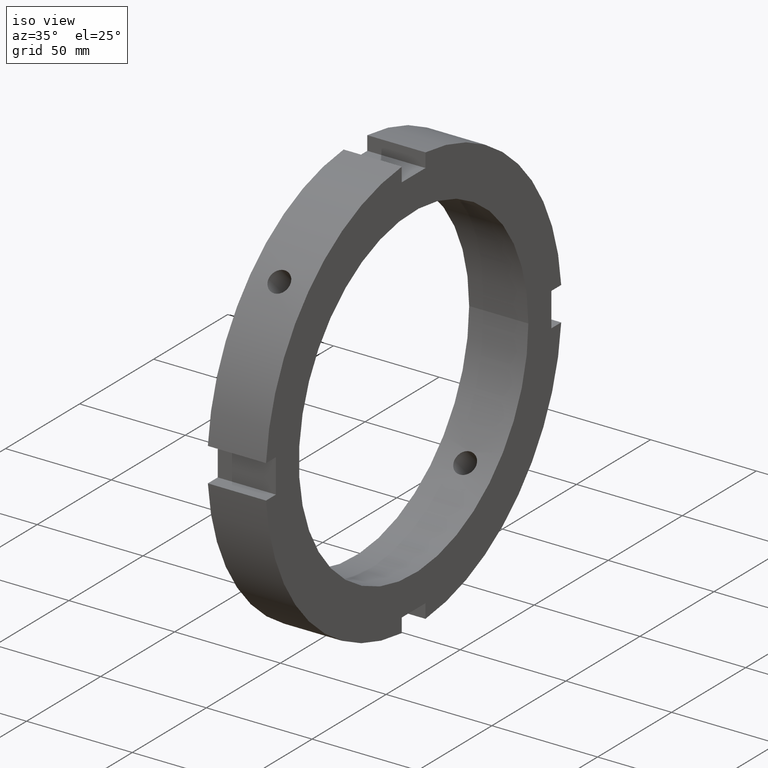
[diagram: clean part render]
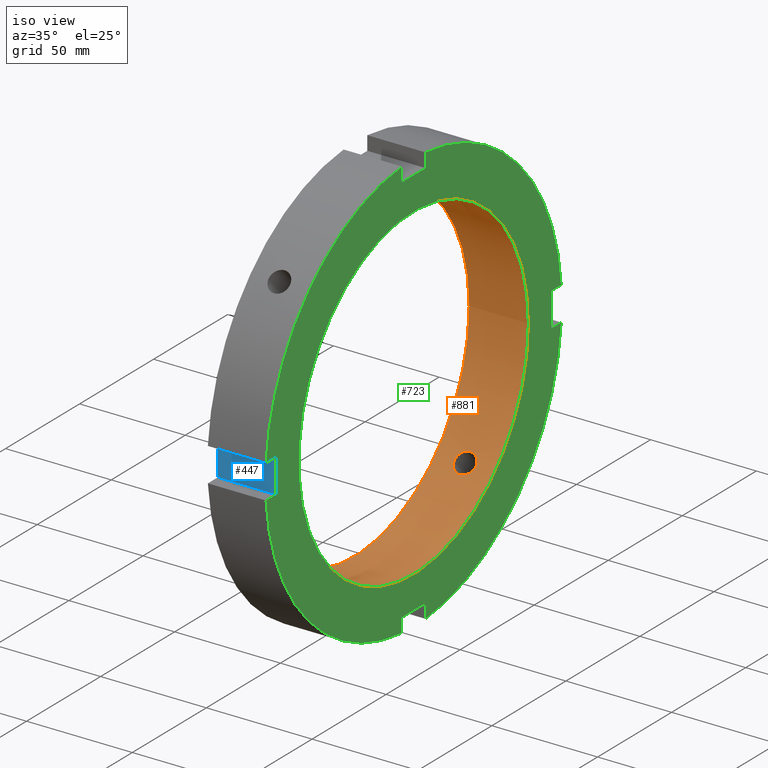
[diagram: same view with three faces highlighted in distinct colors, each labeled with its STEP entity id]
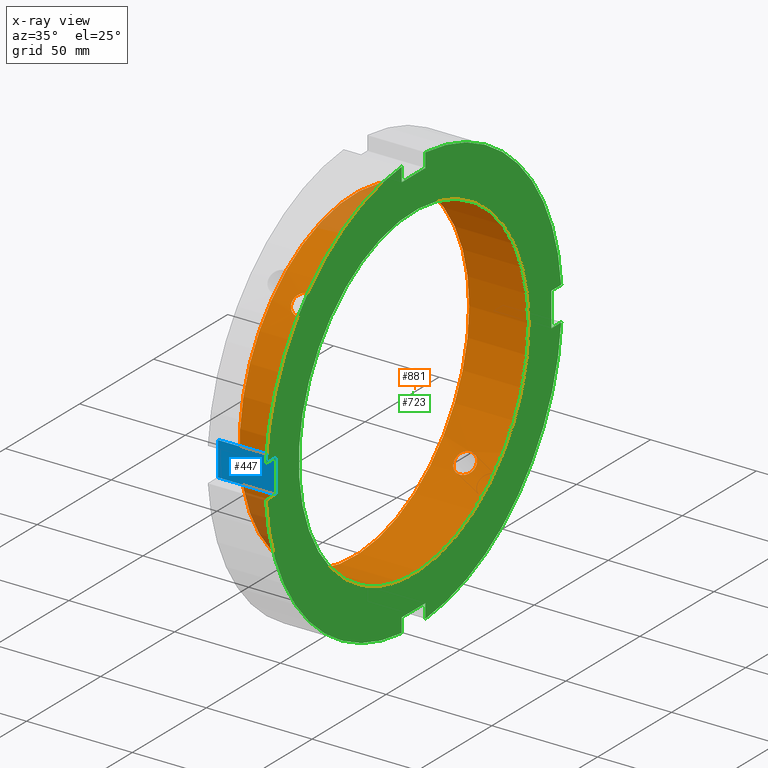
[diagram: x-ray of the same camera — body ghosted, the three highlighted faces saturated]
A machine part, iso view with three faces highlighted in distinct colors.
The next image is the same camera in x-ray (body ghosted, the three faces saturated) — at least one of them is partly hidden behind the body in this view.
Their STEP definitions:

[orange] entity #881 — the highlighted cylindrical surface (bore or boss wall) has radius 77.5 mm, axis along (1, 0, 0).
#114=CARTESIAN_POINT('',(13.999999999999984,-58.257181908604593,51.111160777933343));
#115=VERTEX_POINT('',#114);
#116=CARTESIAN_POINT('',(13.999999999999984,-58.257181908604601,51.111160777933364));
#117=CARTESIAN_POINT('',(14.634659288342045,-58.257181908604601,51.111160777933364));
#118=CARTESIAN_POINT('',(15.311498536589374,-58.173561622553223,51.206966962654334));
#119=CARTESIAN_POINT('',(16.556399978278446,-57.830889824524178,51.593651928783579));
#120=CARTESIAN_POINT('',(17.124477464442638,-57.571527542654444,51.884205948198371));
#121=CARTESIAN_POINT('',(18.021543391817140,-56.966481620826883,52.547802827206631));
#122=CARTESIAN_POINT('',(18.410393147617931,-56.580371484724665,52.965075750134744));
#123=CARTESIAN_POINT('',(18.926126429907374,-55.722066425580195,53.867327758361299));
#124=CARTESIAN_POINT('',(19.052999999999983,-55.249547153929598,54.352003929985273));
#125=CARTESIAN_POINT('',(19.052999999999983,-54.352003929985258,55.249547153929612));
#126=CARTESIAN_POINT('',(18.926126429907374,-53.867327758361299,55.722066425580195));
#127=CARTESIAN_POINT('',(18.410393147617938,-52.965075750134730,56.580371484724672));
#128=CARTESIAN_POINT('',(18.021543391817140,-52.547802827206631,56.966481620826897));
#129=CARTESIAN_POINT('',(17.124477464442638,-51.884205948198371,57.571527542654451));
#130=CARTESIAN_POINT('',(16.556399978278449,-51.593651928783558,57.830889824524199));
#131=CARTESIAN_POINT('',(15.311498536589383,-51.206966962654320,58.173561622553251));
#132=CARTESIAN_POINT('',(14.634659288342045,-51.111160777933350,58.257181908604579));
#133=CARTESIAN_POINT('',(13.365340711657922,-51.111160777933350,58.257181908604593));
#134=CARTESIAN_POINT('',(12.688501463410580,-51.206966962654327,58.173561622553251));
#135=CARTESIAN_POINT('',(11.443600021721510,-51.593651928783572,57.830889824524192));
#136=CARTESIAN_POINT('',(10.875522535557330,-51.884205948198371,57.571527542654465));
#137=CARTESIAN_POINT('',(9.978456608182826,-52.547802827206631,56.966481620826897));
#138=CARTESIAN_POINT('',(9.589606852382026,-52.965075750134730,56.580371484724672));
#139=CARTESIAN_POINT('',(9.073873570092589,-53.867327758361299,55.722066425580195));
#140=CARTESIAN_POINT('',(8.946999999999983,-54.352003929985258,55.249547153929612));
#141=CARTESIAN_POINT('',(8.946999999999983,-55.249547153929598,54.352003929985273));
#142=CARTESIAN_POINT('',(9.073873570092596,-55.722066425580195,53.867327758361306));
#143=CARTESIAN_POINT('',(9.589606852382035,-56.580371484724665,52.965075750134751));
#144=CARTESIAN_POINT('',(9.978456608182825,-56.966481620826883,52.547802827206631));
#145=CARTESIAN_POINT('',(10.875522535557330,-57.571527542654444,51.884205948198371));
#146=CARTESIAN_POINT('',(11.443600021721528,-57.830889824524178,51.593651928783586));
#147=CARTESIAN_POINT('',(12.688501463410597,-58.173561622553223,51.206966962654349));
#148=CARTESIAN_POINT('',(13.365340711657925,-58.257181908604601,51.111160777933364));
#149=CARTESIAN_POINT('',(13.999999999999986,-58.257181908604601,51.111160777933364));
#150=B_SPLINE_CURVE_WITH_KNOTS('',3,(#116,#117,#118,#119,#120,#121,#122,#123,#124,#125,#126,#127,#128,#129,#130,#131,#132,#133,#134,#135,#136,#137,#138,#139,#140,#141,#142,#143,#144,#145,#146,#147,#148,#149),.UNSPECIFIED.,.T.,.U.,(4,2,2,2,2,2,2,2,2,2,2,2,2,2,2,2,4),(0.0,0.190397786502618,0.380795573005236,0.571193243022960,0.761590913040683,0.951988583058407,1.142386253076130,1.332784039578749,1.523181826081367,1.713579612583985,1.903977399086603,2.094375069104327,2.284772739122050,2.475170409139774,2.665568079157497,2.855965865660116,3.046363652162734),.UNSPECIFIED.);
#151=EDGE_CURVE('',#115,#115,#150,.T.);
#202=CARTESIAN_POINT('',(13.999999999999984,51.111160777933335,-58.257181908604601));
#203=VERTEX_POINT('',#202);
#204=CARTESIAN_POINT('',(13.999999999999984,51.111160777933343,-58.257181908604608));
#205=CARTESIAN_POINT('',(13.365340711657922,51.111160777933343,-58.257181908604608));
#206=CARTESIAN_POINT('',(12.688501463410589,51.206966962654320,-58.173561622553237));
#207=CARTESIAN_POINT('',(11.443600021721519,51.593651928783558,-57.830889824524192));
#208=CARTESIAN_POINT('',(10.875522535557330,51.884205948198371,-57.571527542654465));
#209=CARTESIAN_POINT('',(9.978456608182826,52.547802827206631,-56.966481620826897));
#210=CARTESIAN_POINT('',(9.589606852382026,52.965075750134730,-56.580371484724672));
#211=CARTESIAN_POINT('',(9.073873570092589,53.867327758361299,-55.722066425580195));
#212=CARTESIAN_POINT('',(8.946999999999983,54.352003929985258,-55.249547153929612));
#213=CARTESIAN_POINT('',(8.946999999999983,55.249547153929598,-54.352003929985273));
#214=CARTESIAN_POINT('',(9.073873570092596,55.722066425580195,-53.867327758361306));
#215=CARTESIAN_POINT('',(9.589606852382035,56.580371484724665,-52.965075750134751));
#216=CARTESIAN_POINT('',(9.978456608182825,56.966481620826883,-52.547802827206631));
#217=CARTESIAN_POINT('',(10.875522535557330,57.571527542654444,-51.884205948198371));
#218=CARTESIAN_POINT('',(11.443600021721522,57.830889824524178,-51.593651928783579));
#219=CARTESIAN_POINT('',(12.688501463410592,58.173561622553223,-51.206966962654334));
#220=CARTESIAN_POINT('',(13.365340711657922,58.257181908604579,-51.111160777933364));
#221=CARTESIAN_POINT('',(14.634659288342045,58.257181908604579,-51.111160777933364));
#222=CARTESIAN_POINT('',(15.311498536589376,58.173561622553223,-51.206966962654342));
#223=CARTESIAN_POINT('',(16.556399978278446,57.830889824524178,-51.593651928783586));
#224=CARTESIAN_POINT('',(17.124477464442634,57.571527542654444,-51.884205948198371));
#225=CARTESIAN_POINT('',(18.021543391817140,56.966481620826883,-52.547802827206631));
#226=CARTESIAN_POINT('',(18.410393147617942,56.580371484724658,-52.965075750134758));
#227=CARTESIAN_POINT('',(18.926126429907374,55.722066425580188,-53.867327758361313));
#228=CARTESIAN_POINT('',(19.052999999999983,55.249547153929598,-54.352003929985273));
#229=CARTESIAN_POINT('',(19.052999999999983,54.352003929985258,-55.249547153929612));
#230=CARTESIAN_POINT('',(18.926126429907377,53.867327758361299,-55.722066425580195));
#231=CARTESIAN_POINT('',(18.410393147617942,52.965075750134730,-56.580371484724672));
#232=CARTESIAN_POINT('',(18.021543391817143,52.547802827206631,-56.966481620826897));
#233=CARTESIAN_POINT('',(17.124477464442641,51.884205948198371,-57.571527542654465));
#234=CARTESIAN_POINT('',(16.556399978278453,51.593651928783558,-57.830889824524185));
#235=CARTESIAN_POINT('',(15.311498536589383,51.206966962654320,-58.173561622553237));
#236=CARTESIAN_POINT('',(14.634659288342045,51.111160777933343,-58.257181908604608));
#237=CARTESIAN_POINT('',(13.999999999999984,51.111160777933343,-58.257181908604608));
#238=B_SPLINE_CURVE_WITH_KNOTS('',3,(#204,#205,#206,#207,#208,#209,#210,#211,#212,#213,#214,#215,#216,#217,#218,#219,#220,#221,#222,#223,#224,#225,#226,#227,#228,#229,#230,#231,#232,#233,#234,#235,#236,#237),.UNSPECIFIED.,.T.,.U.,(4,2,2,2,2,2,2,2,2,2,2,2,2,2,2,2,4),(0.0,0.190397786502618,0.380795573005236,0.571193243022960,0.761590913040683,0.951988583058407,1.142386253076130,1.332784039578749,1.523181826081367,1.713579612583985,1.903977399086603,2.094375069104327,2.284772739122051,2.475170409139774,2.665568079157497,2.855965865660116,3.046363652162734),.UNSPECIFIED.);
#239=EDGE_CURVE('',#203,#203,#238,.T.);
#712=CARTESIAN_POINT('',(27.999999999999986,77.500000000000000,0.0));
#713=VERTEX_POINT('',#712);
#714=CARTESIAN_POINT('',(27.999999999999986,0.0,0.0));
#715=DIRECTION('',(1.0,0.0,0.0));
#716=DIRECTION('',(0.0,1.0,0.0));
#717=AXIS2_PLACEMENT_3D('',#714,#715,#716);
#718=CIRCLE('',#717,77.500000000000000);
#719=EDGE_CURVE('',#713,#713,#718,.T.);
#805=CARTESIAN_POINT('',(-2.283313E-014,77.500000000000000,0.0));
#806=VERTEX_POINT('',#805);
#807=CARTESIAN_POINT('',(-2.283330E-014,0.0,0.0));
#808=DIRECTION('',(1.0,0.0,0.0));
#809=DIRECTION('',(0.0,1.0,0.0));
#810=AXIS2_PLACEMENT_3D('',#807,#808,#809);
#811=CIRCLE('',#810,77.500000000000000);
#812=EDGE_CURVE('',#806,#806,#811,.T.);
#864=CARTESIAN_POINT('',(13.999999999999982,0.0,0.0));
#865=DIRECTION('',(1.0,0.0,0.0));
#866=DIRECTION('',(0.0,1.0,0.0));
#867=AXIS2_PLACEMENT_3D('',#864,#865,#866);
#868=CYLINDRICAL_SURFACE('',#867,77.500000000000000);
#869=ORIENTED_EDGE('',*,*,#812,.F.);
#870=EDGE_LOOP('',(#869));
#871=FACE_OUTER_BOUND('',#870,.T.);
#872=ORIENTED_EDGE('',*,*,#151,.T.);
#873=EDGE_LOOP('',(#872));
#874=FACE_BOUND('',#873,.T.);
#875=ORIENTED_EDGE('',*,*,#239,.T.);
#876=EDGE_LOOP('',(#875));
#877=FACE_BOUND('',#876,.T.);
#878=ORIENTED_EDGE('',*,*,#719,.T.);
#879=EDGE_LOOP('',(#878));
#880=FACE_BOUND('',#879,.T.);
#881=ADVANCED_FACE('',(#871,#874,#877,#880),#868,.F.);

[blue] entity #447 — the highlighted planar face has unit normal (0, 1, 0).
#351=CARTESIAN_POINT('',(0.499999999999972,-93.0,8.000000000000005));
#352=VERTEX_POINT('',#351);
#361=CARTESIAN_POINT('',(27.999999999999979,-93.0,8.000000000000005));
#362=VERTEX_POINT('',#361);
#363=CARTESIAN_POINT('',(27.999999999999979,-93.0,8.000000000000005));
#364=DIRECTION('',(-1.0,0.0,0.0));
#365=VECTOR('',#364,27.500000000000007);
#366=LINE('',#363,#365);
#367=EDGE_CURVE('',#362,#352,#366,.T.);
#393=CARTESIAN_POINT('',(0.499999999999972,-93.0,-7.999999999999984));
#394=VERTEX_POINT('',#393);
#409=CARTESIAN_POINT('',(27.999999999999979,-93.0,-7.999999999999984));
#410=VERTEX_POINT('',#409);
#417=CARTESIAN_POINT('',(27.999999999999979,-93.0,-7.999999999999984));
#418=DIRECTION('',(-1.0,0.0,0.0));
#419=VECTOR('',#418,27.500000000000007);
#420=LINE('',#417,#419);
#421=EDGE_CURVE('',#410,#394,#420,.T.);
#426=CARTESIAN_POINT('',(27.999999999999979,-93.0,-7.999999999999984));
#427=DIRECTION('',(0.0,1.0,0.0));
#428=DIRECTION('',(0.0,0.0,1.0));
#429=AXIS2_PLACEMENT_3D('',#426,#427,#428);
#430=PLANE('',#429);
#431=CARTESIAN_POINT('',(0.499999999999974,-93.0,-7.999999999999984));
#432=DIRECTION('',(0.0,0.0,1.0));
#433=VECTOR('',#432,15.999999999999989);
#434=LINE('',#431,#433);
#435=EDGE_CURVE('',#394,#352,#434,.T.);
#436=ORIENTED_EDGE('',*,*,#435,.F.);
#437=ORIENTED_EDGE('',*,*,#421,.F.);
#438=CARTESIAN_POINT('',(27.999999999999979,-93.0,8.000000000000005));
#439=DIRECTION('',(0.0,0.0,-1.0));
#440=VECTOR('',#439,15.999999999999989);
#441=LINE('',#438,#440);
#442=EDGE_CURVE('',#362,#410,#441,.T.);
#443=ORIENTED_EDGE('',*,*,#442,.F.);
#444=ORIENTED_EDGE('',*,*,#367,.T.);
#445=EDGE_LOOP('',(#436,#437,#443,#444));
#446=FACE_OUTER_BOUND('',#445,.T.);
#447=ADVANCED_FACE('',(#446),#430,.F.);

[green] entity #723 — the highlighted planar face has unit normal (1, 0, 0).
#259=CARTESIAN_POINT('',(27.999999999999979,-8.000000000000011,-93.0));
#260=VERTEX_POINT('',#259);
#267=CARTESIAN_POINT('',(27.999999999999979,-8.000000000000012,-99.679486355016905));
#268=VERTEX_POINT('',#267);
#269=CARTESIAN_POINT('',(27.999999999999979,-8.000000000000007,-99.679486355016905));
#270=DIRECTION('',(0.0,0.0,1.0));
#271=VECTOR('',#270,6.679486355016906);
#272=LINE('',#269,#271);
#273=EDGE_CURVE('',#268,#260,#272,.T.);
#299=CARTESIAN_POINT('',(27.999999999999979,7.999999999999977,-99.679486355016905));
#300=VERTEX_POINT('',#299);
#307=CARTESIAN_POINT('',(27.999999999999979,7.999999999999979,-93.0));
#308=VERTEX_POINT('',#307);
#309=CARTESIAN_POINT('',(27.999999999999979,7.999999999999973,-93.0));
#310=DIRECTION('',(0.0,0.0,-1.0));
#311=VECTOR('',#310,6.679486355016906);
#312=LINE('',#309,#311);
#313=EDGE_CURVE('',#308,#300,#312,.T.);
#336=CARTESIAN_POINT('',(27.999999999999979,-8.000000000000014,-92.999999999999986));
#337=DIRECTION('',(0.0,1.0,0.0));
#338=VECTOR('',#337,15.999999999999993);
#339=LINE('',#336,#338);
#340=EDGE_CURVE('',#260,#308,#339,.T.);
#361=CARTESIAN_POINT('',(27.999999999999979,-93.0,8.000000000000005));
#362=VERTEX_POINT('',#361);
#369=CARTESIAN_POINT('',(27.999999999999979,-99.679486355016905,8.000000000000005));
#370=VERTEX_POINT('',#369);
#371=CARTESIAN_POINT('',(27.999999999999979,-99.679486355016905,8.000000000000007));
#372=DIRECTION('',(0.0,1.0,0.0));
#373=VECTOR('',#372,6.679486355016906);
#374=LINE('',#371,#373);
#375=EDGE_CURVE('',#370,#362,#374,.T.);
#401=CARTESIAN_POINT('',(27.999999999999979,-99.679486355016905,-7.999999999999984));
#402=VERTEX_POINT('',#401);
#409=CARTESIAN_POINT('',(27.999999999999979,-93.0,-7.999999999999984));
#410=VERTEX_POINT('',#409);
#411=CARTESIAN_POINT('',(27.999999999999979,-93.0,-7.999999999999983));
#412=DIRECTION('',(0.0,-1.0,0.0));
#413=VECTOR('',#412,6.679486355016906);
#414=LINE('',#411,#413);
#415=EDGE_CURVE('',#410,#402,#414,.T.);
#438=CARTESIAN_POINT('',(27.999999999999979,-93.0,8.000000000000005));
#439=DIRECTION('',(0.0,0.0,-1.0));
#440=VECTOR('',#439,15.999999999999989);
#441=LINE('',#438,#440);
#442=EDGE_CURVE('',#362,#410,#441,.T.);
#463=CARTESIAN_POINT('',(27.999999999999979,8.0,93.0));
#464=VERTEX_POINT('',#463);
#471=CARTESIAN_POINT('',(27.999999999999979,8.0,99.679486355016905));
#472=VERTEX_POINT('',#471);
#473=CARTESIAN_POINT('',(27.999999999999979,8.000000000000011,99.679486355016905));
#474=DIRECTION('',(0.0,0.0,-1.0));
#475=VECTOR('',#474,6.679486355016906);
#476=LINE('',#473,#475);
#477=EDGE_CURVE('',#472,#464,#476,.T.);
#503=CARTESIAN_POINT('',(27.999999999999979,-7.999999999999989,99.679486355016905));
#504=VERTEX_POINT('',#503);
#511=CARTESIAN_POINT('',(27.999999999999979,-7.999999999999989,93.0));
#512=VERTEX_POINT('',#511);
#513=CARTESIAN_POINT('',(27.999999999999979,-7.999999999999987,93.0));
#514=DIRECTION('',(0.0,0.0,1.0));
#515=VECTOR('',#514,6.679486355016906);
#516=LINE('',#513,#515);
#517=EDGE_CURVE('',#512,#504,#516,.T.);
#540=CARTESIAN_POINT('',(27.999999999999979,8.0,93.0));
#541=DIRECTION('',(0.0,-1.0,0.0));
#542=VECTOR('',#541,15.999999999999986);
#543=LINE('',#540,#542);
#544=EDGE_CURVE('',#464,#512,#543,.T.);
#556=CARTESIAN_POINT('',(27.999999999999979,99.679486355016905,7.999999999999995));
#557=VERTEX_POINT('',#556);
#558=CARTESIAN_POINT('',(27.999999999999979,0.0,0.0));
#559=DIRECTION('',(1.0,0.0,0.0));
#560=DIRECTION('',(0.0,1.0,0.0));
#561=AXIS2_PLACEMENT_3D('',#558,#559,#560);
#562=CIRCLE('',#561,100.0);
#563=EDGE_CURVE('',#557,#472,#562,.T.);
#589=CARTESIAN_POINT('',(27.999999999999979,0.0,0.0));
#590=DIRECTION('',(1.0,0.0,0.0));
#591=DIRECTION('',(0.0,1.0,0.0));
#592=AXIS2_PLACEMENT_3D('',#589,#590,#591);
#593=CIRCLE('',#592,100.0);
#594=EDGE_CURVE('',#504,#370,#593,.T.);
#625=CARTESIAN_POINT('',(27.999999999999979,99.679486355016905,-7.999999999999995));
#626=VERTEX_POINT('',#625);
#633=CARTESIAN_POINT('',(27.999999999999979,0.0,0.0));
#634=DIRECTION('',(1.0,0.0,0.0));
#635=DIRECTION('',(0.0,1.0,0.0));
#636=AXIS2_PLACEMENT_3D('',#633,#634,#635);
#637=CIRCLE('',#636,100.0);
#638=EDGE_CURVE('',#300,#626,#637,.T.);
#652=CARTESIAN_POINT('',(27.999999999999979,0.0,0.0));
#653=DIRECTION('',(1.0,0.0,0.0));
#654=DIRECTION('',(0.0,1.0,0.0));
#655=AXIS2_PLACEMENT_3D('',#652,#653,#654);
#656=CIRCLE('',#655,100.0);
#657=EDGE_CURVE('',#402,#268,#656,.T.);
#670=CARTESIAN_POINT('',(27.999999999999979,88.750000000000000,0.0));
#671=DIRECTION('',(1.0,0.0,0.0));
#672=DIRECTION('',(0.0,0.0,-1.0));
#673=AXIS2_PLACEMENT_3D('',#670,#671,#672);
#674=PLANE('',#673);
#675=ORIENTED_EDGE('',*,*,#273,.T.);
#676=ORIENTED_EDGE('',*,*,#340,.T.);
#677=ORIENTED_EDGE('',*,*,#313,.T.);
#678=ORIENTED_EDGE('',*,*,#638,.T.);
#679=CARTESIAN_POINT('',(27.999999999999979,93.0,-7.999999999999995));
#680=VERTEX_POINT('',#679);
#681=CARTESIAN_POINT('',(27.999999999999979,99.679486355016905,-7.999999999999995));
#682=DIRECTION('',(0.0,-1.0,0.0));
#683=VECTOR('',#682,6.679486355016906);
#684=LINE('',#681,#683);
#685=EDGE_CURVE('',#626,#680,#684,.T.);
#686=ORIENTED_EDGE('',*,*,#685,.T.);
#687=CARTESIAN_POINT('',(27.999999999999979,93.0,7.999999999999995));
#688=VERTEX_POINT('',#687);
#689=CARTESIAN_POINT('',(27.999999999999979,93.0,-7.999999999999996));
#690=DIRECTION('',(0.0,0.0,1.0));
#691=VECTOR('',#690,15.999999999999989);
#692=LINE('',#689,#691);
#693=EDGE_CURVE('',#680,#688,#692,.T.);
#694=ORIENTED_EDGE('',*,*,#693,.T.);
#695=CARTESIAN_POINT('',(27.999999999999979,93.0,7.999999999999995));
#696=DIRECTION('',(0.0,1.0,0.0));
#697=VECTOR('',#696,6.679486355016906);
#698=LINE('',#695,#697);
#699=EDGE_CURVE('',#688,#557,#698,.T.);
#700=ORIENTED_EDGE('',*,*,#699,.T.);
#701=ORIENTED_EDGE('',*,*,#563,.T.);
#702=ORIENTED_EDGE('',*,*,#477,.T.);
#703=ORIENTED_EDGE('',*,*,#544,.T.);
#704=ORIENTED_EDGE('',*,*,#517,.T.);
#705=ORIENTED_EDGE('',*,*,#594,.T.);
#706=ORIENTED_EDGE('',*,*,#375,.T.);
#707=ORIENTED_EDGE('',*,*,#442,.T.);
#708=ORIENTED_EDGE('',*,*,#415,.T.);
#709=ORIENTED_EDGE('',*,*,#657,.T.);
#710=EDGE_LOOP('',(#675,#676,#677,#678,#686,#694,#700,#701,#702,#703,#704,#705,#706,#707,#708,#709));
#711=FACE_OUTER_BOUND('',#710,.T.);
#712=CARTESIAN_POINT('',(27.999999999999986,77.500000000000000,0.0));
#713=VERTEX_POINT('',#712);
#714=CARTESIAN_POINT('',(27.999999999999986,0.0,0.0));
#715=DIRECTION('',(1.0,0.0,0.0));
#716=DIRECTION('',(0.0,1.0,0.0));
#717=AXIS2_PLACEMENT_3D('',#714,#715,#716);
#718=CIRCLE('',#717,77.500000000000000);
#719=EDGE_CURVE('',#713,#713,#718,.T.);
#720=ORIENTED_EDGE('',*,*,#719,.F.);
#721=EDGE_LOOP('',(#720));
#722=FACE_BOUND('',#721,.T.);
#723=ADVANCED_FACE('',(#711,#722),#674,.T.);